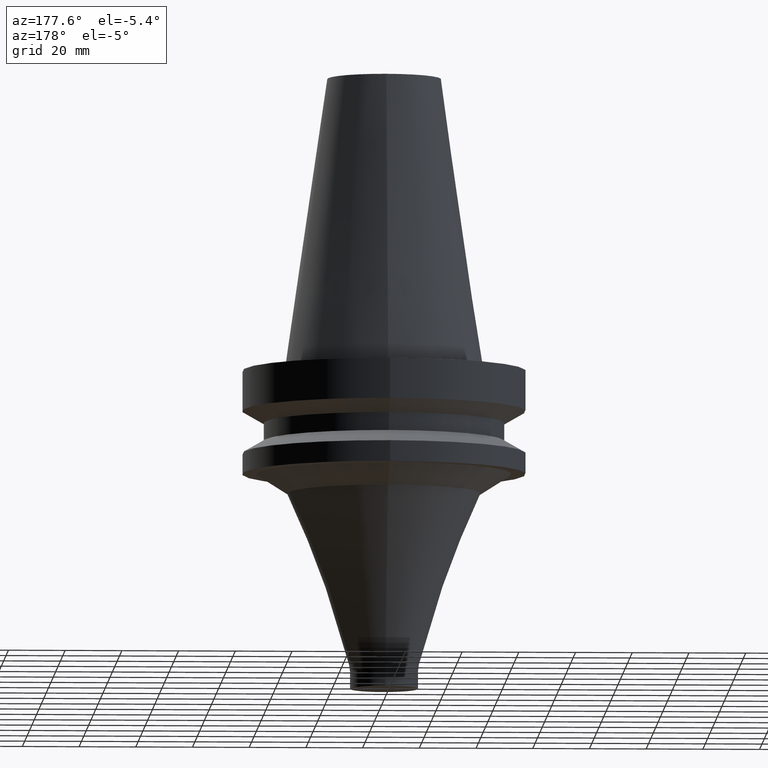
[diagram: clean part render]
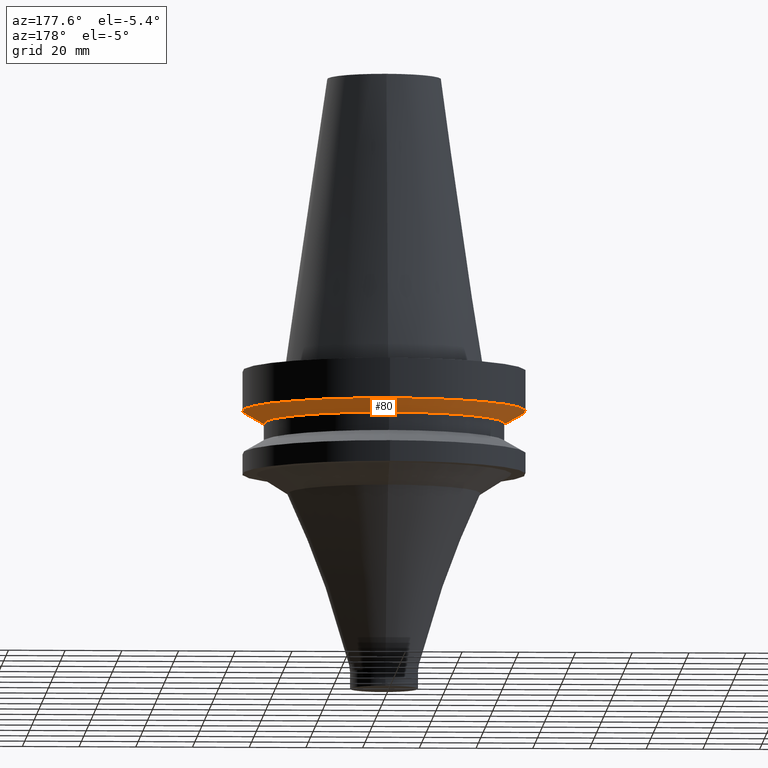
[diagram: same view with one face highlighted and labeled with its STEP entity id]
A machine part, auxiliary view. The second image highlights one B-rep face of the part: STEP entity #80.
In plain terms, the highlighted conical surface has half-angle 60 deg.
Its self-contained STEP definition (entity closure, byte-faithful):
#80=ADVANCED_FACE('',(#105,#106),#107,.T.);
#105=FACE_BOUND('',#148,.T.);
#106=FACE_BOUND('',#149,.T.);
#107=CONICAL_SURFACE('',#150,46.2500000000001,1.04719755119661);
#148=EDGE_LOOP('',(#201));
#149=EDGE_LOOP('',(#202));
#150=AXIS2_PLACEMENT_3D('',#203,#204,#205);
#201=ORIENTED_EDGE('',*,*,#255,.F.);
#202=ORIENTED_EDGE('',*,*,#254,.T.);
#203=CARTESIAN_POINT('',(1.09391964217128E-015,-2.96877048092327E-014,-17.865063509461));
#204=DIRECTION('',(-6.12323399573677E-017,-4.47533550436228E-016,1.0));
#205=DIRECTION('',(-3.22306792334079E-032,1.0,4.47533550436228E-016));
#254=EDGE_CURVE('',#272,#272,#273,.T.);
#255=EDGE_CURVE('',#274,#274,#275,.T.);
#272=VERTEX_POINT('',#300);
#273=CIRCLE('',#301,50.0);
#274=VERTEX_POINT('',#302);
#275=CIRCLE('',#303,42.5000000000003);
#300=CARTESIAN_POINT('',(9.61347737330673E-016,49.9999999999999,-15.7));
#301=AXIS2_PLACEMENT_3D('',#332,#333,#334);
#302=CARTESIAN_POINT('',(1.22649154701188E-015,42.5000000000003,-20.0301270189219));
#303=AXIS2_PLACEMENT_3D('',#335,#336,#337);
#332=CARTESIAN_POINT('',(9.61347737330675E-016,-3.06566433685417E-014,-15.7));
#333=DIRECTION('',(6.12323399573677E-017,4.47533550436228E-016,-1.0));
#334=DIRECTION('',(-3.22306792334079E-032,1.0,4.47533550436228E-016));
#335=CARTESIAN_POINT('',(1.22649154701188E-015,-2.87187662499238E-014,-20.0301270189219));
#336=DIRECTION('',(6.12323399573677E-017,4.47533550436228E-016,-1.0));
#337=DIRECTION('',(-3.22306792334079E-032,1.0,4.47533550436228E-016));